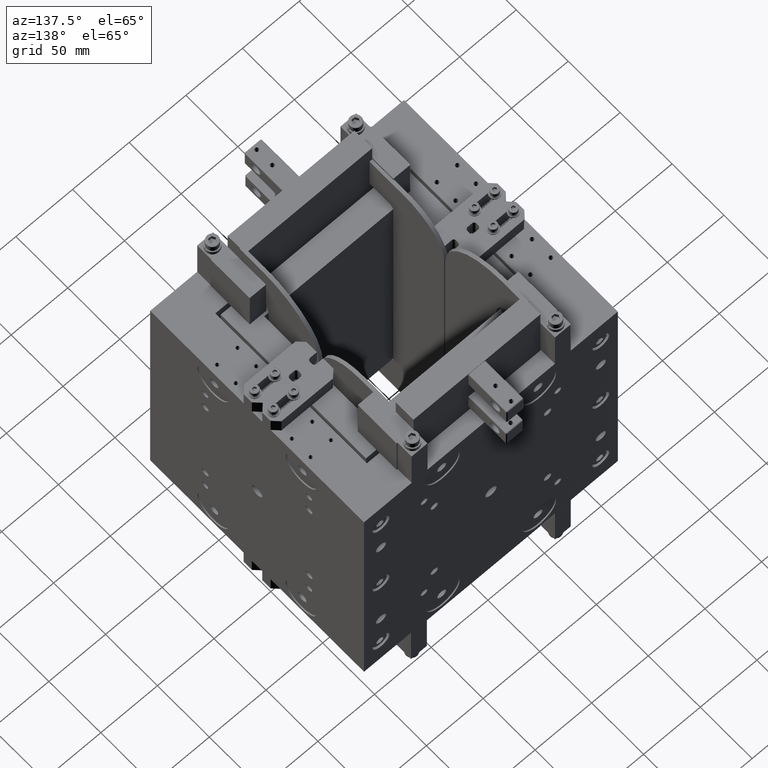
[diagram: clean part render]
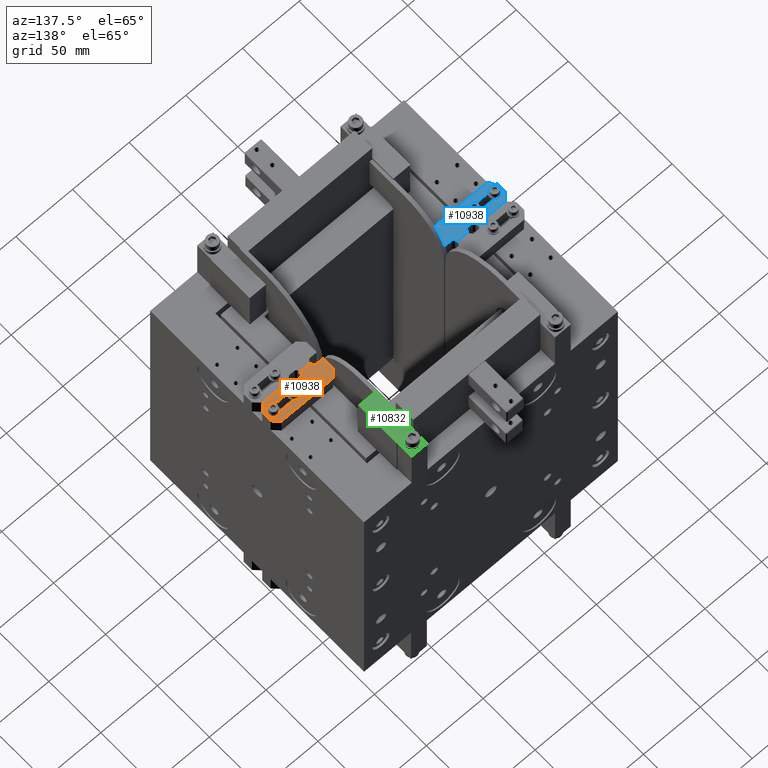
[diagram: same view with three faces highlighted in distinct colors, each labeled with its STEP entity id]
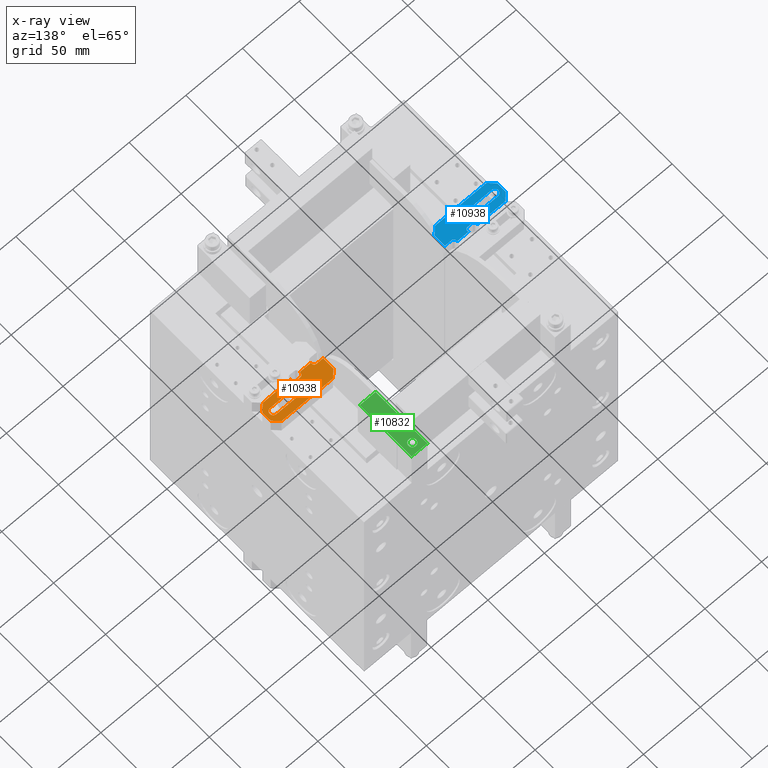
[diagram: x-ray of the same camera — body ghosted, the three highlighted faces saturated]
A machine part, auxiliary view with three faces highlighted in distinct colors.
The next image is the same camera in x-ray (body ghosted, the three faces saturated) — at least one of them is partly hidden behind the body in this view.
Their STEP definitions:

[orange] entity #10938 — the highlighted planar face has unit normal (0, 0, 1).
#1246=FACE_BOUND('',#3308,.T.);
#1669=CIRCLE('',#12020,3.);
#1671=CIRCLE('',#12024,3.);
#1673=CIRCLE('',#12029,2.00000000000001);
#1674=CIRCLE('',#12033,2.);
#1675=CIRCLE('',#12034,2.);
#2408=FACE_OUTER_BOUND('',#3307,.T.);
#3307=EDGE_LOOP('',(#9404,#9405,#9406,#9407,#9408,#9409,#9410,#9411,#9412,
#9413,#9414,#9415,#9416,#9417,#9418,#9419));
#3308=EDGE_LOOP('',(#9420,#9421,#9422,#9423));
#4061=LINE('',#21032,#4827);
#4064=LINE('',#21041,#4830);
#4067=LINE('',#21049,#4833);
#4072=LINE('',#21062,#4838);
#4073=LINE('',#21065,#4839);
#4076=LINE('',#21071,#4842);
#4077=LINE('',#21073,#4843);
#4078=LINE('',#21077,#4844);
#4079=LINE('',#21081,#4845);
#4080=LINE('',#21083,#4846);
#4081=LINE('',#21085,#4847);
#4082=LINE('',#21087,#4848);
#4083=LINE('',#21089,#4849);
#4084=LINE('',#21091,#4850);
#4085=LINE('',#21092,#4851);
#4827=VECTOR('',#14982,18.);
#4830=VECTOR('',#14993,18.);
#4833=VECTOR('',#14998,6.);
#4838=VECTOR('',#15011,1.);
#4839=VECTOR('',#15014,9.99999999999998);
#4842=VECTOR('',#15019,10.);
#4843=VECTOR('',#15020,1.);
#4844=VECTOR('',#15023,4.);
#4845=VECTOR('',#15026,1.);
#4846=VECTOR('',#15027,24.5);
#4847=VECTOR('',#15028,7.07106781186548);
#4848=VECTOR('',#15029,7.99999999999999);
#4849=VECTOR('',#15030,7.07106781186548);
#4850=VECTOR('',#15031,45.5);
#4851=VECTOR('',#15032,7.07106781186548);
#5739=VERTEX_POINT('',#21022);
#5740=VERTEX_POINT('',#21024);
#5742=VERTEX_POINT('',#21030);
#5744=VERTEX_POINT('',#21036);
#5747=VERTEX_POINT('',#21046);
#5748=VERTEX_POINT('',#21048);
#5750=VERTEX_POINT('',#21054);
#5752=VERTEX_POINT('',#21060);
#5753=VERTEX_POINT('',#21064);
#5755=VERTEX_POINT('',#21070);
#5756=VERTEX_POINT('',#21072);
#5757=VERTEX_POINT('',#21074);
#5758=VERTEX_POINT('',#21076);
#5759=VERTEX_POINT('',#21078);
#5760=VERTEX_POINT('',#21080);
#5761=VERTEX_POINT('',#21082);
#5762=VERTEX_POINT('',#21084);
#5763=VERTEX_POINT('',#21086);
#5764=VERTEX_POINT('',#21088);
#5765=VERTEX_POINT('',#21090);
#6964=EDGE_CURVE('',#5740,#5739,#1669,.T.);
#6968=EDGE_CURVE('',#5739,#5742,#4061,.T.);
#6971=EDGE_CURVE('',#5742,#5744,#1671,.T.);
#6973=EDGE_CURVE('',#5744,#5740,#4064,.T.);
#6976=EDGE_CURVE('',#5748,#5747,#4067,.T.);
#6980=EDGE_CURVE('',#5747,#5750,#1673,.T.);
#6983=EDGE_CURVE('',#5750,#5752,#4072,.T.);
#6984=EDGE_CURVE('',#5753,#5748,#4073,.T.);
#6987=EDGE_CURVE('',#5752,#5755,#4076,.T.);
#6988=EDGE_CURVE('',#5755,#5756,#4077,.T.);
#6989=EDGE_CURVE('',#5756,#5757,#1674,.T.);
#6990=EDGE_CURVE('',#5757,#5758,#4078,.T.);
#6991=EDGE_CURVE('',#5758,#5759,#1675,.T.);
#6992=EDGE_CURVE('',#5759,#5760,#4079,.T.);
#6993=EDGE_CURVE('',#5760,#5761,#4080,.T.);
#6994=EDGE_CURVE('',#5761,#5762,#4081,.T.);
#6995=EDGE_CURVE('',#5762,#5763,#4082,.T.);
#6996=EDGE_CURVE('',#5763,#5764,#4083,.T.);
#6997=EDGE_CURVE('',#5764,#5765,#4084,.T.);
#6998=EDGE_CURVE('',#5765,#5753,#4085,.T.);
#9404=ORIENTED_EDGE('',*,*,#6976,.T.);
#9405=ORIENTED_EDGE('',*,*,#6980,.T.);
#9406=ORIENTED_EDGE('',*,*,#6983,.T.);
#9407=ORIENTED_EDGE('',*,*,#6987,.T.);
#9408=ORIENTED_EDGE('',*,*,#6988,.T.);
#9409=ORIENTED_EDGE('',*,*,#6989,.T.);
#9410=ORIENTED_EDGE('',*,*,#6990,.T.);
#9411=ORIENTED_EDGE('',*,*,#6991,.T.);
#9412=ORIENTED_EDGE('',*,*,#6992,.T.);
#9413=ORIENTED_EDGE('',*,*,#6993,.T.);
#9414=ORIENTED_EDGE('',*,*,#6994,.T.);
#9415=ORIENTED_EDGE('',*,*,#6995,.T.);
#9416=ORIENTED_EDGE('',*,*,#6996,.T.);
#9417=ORIENTED_EDGE('',*,*,#6997,.T.);
#9418=ORIENTED_EDGE('',*,*,#6998,.T.);
#9419=ORIENTED_EDGE('',*,*,#6984,.T.);
#9420=ORIENTED_EDGE('',*,*,#6964,.T.);
#9421=ORIENTED_EDGE('',*,*,#6968,.T.);
#9422=ORIENTED_EDGE('',*,*,#6971,.T.);
#9423=ORIENTED_EDGE('',*,*,#6973,.T.);
#9855=PLANE('',#12032);
#10938=ADVANCED_FACE('',(#2408,#1246),#9855,.T.);
#12020=AXIS2_PLACEMENT_3D('',#21025,#14975,#14976);
#12024=AXIS2_PLACEMENT_3D('',#21038,#14988,#14989);
#12029=AXIS2_PLACEMENT_3D('',#21056,#15005,#15006);
#12032=AXIS2_PLACEMENT_3D('',#21069,#15017,#15018);
#12033=AXIS2_PLACEMENT_3D('',#21075,#15021,#15022);
#12034=AXIS2_PLACEMENT_3D('',#21079,#15024,#15025);
#14975=DIRECTION('center_axis',(0.,0.,-1.));
#14976=DIRECTION('ref_axis',(-1.,0.,0.));
#14982=DIRECTION('',(-1.85037170770859E-16,1.,0.));
#14988=DIRECTION('center_axis',(0.,0.,-1.));
#14989=DIRECTION('ref_axis',(1.,0.,0.));
#14993=DIRECTION('',(0.,-1.,0.));
#14998=DIRECTION('',(0.,-1.,0.));
#15005=DIRECTION('center_axis',(0.,0.,-1.));
#15006=DIRECTION('ref_axis',(6.93889390390722E-17,-1.,0.));
#15011=DIRECTION('',(-1.,0.,0.));
#15014=DIRECTION('',(-1.,-6.83214169000097E-16,0.));
#15017=DIRECTION('center_axis',(0.,0.,1.));
#15018=DIRECTION('ref_axis',(1.,0.,0.));
#15019=DIRECTION('',(0.,-1.,0.));
#15020=DIRECTION('',(1.,0.,0.));
#15021=DIRECTION('center_axis',(0.,0.,-1.));
#15022=DIRECTION('ref_axis',(1.,0.,0.));
#15023=DIRECTION('',(5.55111512312578E-16,-1.,0.));
#15024=DIRECTION('center_axis',(0.,0.,-1.));
#15025=DIRECTION('ref_axis',(6.93889390390722E-17,-1.,0.));
#15026=DIRECTION('',(-1.,0.,0.));
#15027=DIRECTION('',(0.,-1.,0.));
#15028=DIRECTION('',(0.707106781186548,-0.707106781186548,0.));
#15029=DIRECTION('',(1.,0.,0.));
#15030=DIRECTION('',(0.707106781186548,0.707106781186547,0.));
#15031=DIRECTION('',(-2.92806072428613E-16,1.,0.));
#15032=DIRECTION('',(-0.707106781186547,0.707106781186548,0.));
#21022=CARTESIAN_POINT('',(6.00000000000001,6.,14.));
#21024=CARTESIAN_POINT('',(12.,6.,14.));
#21025=CARTESIAN_POINT('Origin',(9.,6.,14.));
#21030=CARTESIAN_POINT('',(6.,24.,14.));
#21032=CARTESIAN_POINT('',(6.,26.1877615003536,14.));
#21036=CARTESIAN_POINT('',(12.,24.,14.));
#21038=CARTESIAN_POINT('Origin',(9.,24.,14.));
#21041=CARTESIAN_POINT('',(12.,17.1877615003536,14.));
#21046=CARTESIAN_POINT('',(3.,49.5,14.));
#21048=CARTESIAN_POINT('',(3.,55.5,14.));
#21049=CARTESIAN_POINT('',(3.,38.9377615003536,14.));
#21054=CARTESIAN_POINT('',(1.,47.5,14.));
#21056=CARTESIAN_POINT('Origin',(1.,49.5,14.));
#21060=CARTESIAN_POINT('',(1.09148269594939E-15,47.5,14.));
#21062=CARTESIAN_POINT('',(4.38590793629362,47.5,14.));
#21064=CARTESIAN_POINT('',(13.,55.5,14.));
#21065=CARTESIAN_POINT('',(13.,55.5,14.));
#21069=CARTESIAN_POINT('Origin',(8.77181587258723,28.3755230007073,14.));
#21070=CARTESIAN_POINT('',(-2.52289135337861E-17,37.5,14.));
#21071=CARTESIAN_POINT('',(0.,55.5,14.));
#21072=CARTESIAN_POINT('',(1.,37.5,14.));
#21073=CARTESIAN_POINT('',(4.88590793629362,37.5,14.));
#21074=CARTESIAN_POINT('',(3.,35.5,14.));
#21075=CARTESIAN_POINT('Origin',(1.,35.5,14.));
#21076=CARTESIAN_POINT('',(3.00000000000001,31.5,14.));
#21077=CARTESIAN_POINT('',(3.00000000000001,29.9377615003536,14.));
#21078=CARTESIAN_POINT('',(1.00000000000001,29.5,14.));
#21079=CARTESIAN_POINT('Origin',(1.,31.5,14.));
#21080=CARTESIAN_POINT('',(2.42406468476092E-15,29.5,14.));
#21081=CARTESIAN_POINT('',(4.38590793629362,29.5,14.));
#21082=CARTESIAN_POINT('',(0.,5.,14.));
#21083=CARTESIAN_POINT('',(0.,55.5,14.));
#21084=CARTESIAN_POINT('',(5.,0.,14.));
#21085=CARTESIAN_POINT('',(0.,5.,14.));
#21086=CARTESIAN_POINT('',(13.,0.,14.));
#21087=CARTESIAN_POINT('',(5.,0.,14.));
#21088=CARTESIAN_POINT('',(18.,5.,14.));
#21089=CARTESIAN_POINT('',(13.,0.,14.));
#21090=CARTESIAN_POINT('',(18.,50.5,14.));
#21091=CARTESIAN_POINT('',(18.,5.,14.));
#21092=CARTESIAN_POINT('',(18.,50.5,14.));

[blue] entity #10938 — the highlighted planar face has unit normal (0, 0, 1).
#1246=FACE_BOUND('',#3308,.T.);
#1669=CIRCLE('',#12020,3.);
#1671=CIRCLE('',#12024,3.);
#1673=CIRCLE('',#12029,2.00000000000001);
#1674=CIRCLE('',#12033,2.);
#1675=CIRCLE('',#12034,2.);
#2408=FACE_OUTER_BOUND('',#3307,.T.);
#3307=EDGE_LOOP('',(#9404,#9405,#9406,#9407,#9408,#9409,#9410,#9411,#9412,
#9413,#9414,#9415,#9416,#9417,#9418,#9419));
#3308=EDGE_LOOP('',(#9420,#9421,#9422,#9423));
#4061=LINE('',#21032,#4827);
#4064=LINE('',#21041,#4830);
#4067=LINE('',#21049,#4833);
#4072=LINE('',#21062,#4838);
#4073=LINE('',#21065,#4839);
#4076=LINE('',#21071,#4842);
#4077=LINE('',#21073,#4843);
#4078=LINE('',#21077,#4844);
#4079=LINE('',#21081,#4845);
#4080=LINE('',#21083,#4846);
#4081=LINE('',#21085,#4847);
#4082=LINE('',#21087,#4848);
#4083=LINE('',#21089,#4849);
#4084=LINE('',#21091,#4850);
#4085=LINE('',#21092,#4851);
#4827=VECTOR('',#14982,18.);
#4830=VECTOR('',#14993,18.);
#4833=VECTOR('',#14998,6.);
#4838=VECTOR('',#15011,1.);
#4839=VECTOR('',#15014,9.99999999999998);
#4842=VECTOR('',#15019,10.);
#4843=VECTOR('',#15020,1.);
#4844=VECTOR('',#15023,4.);
#4845=VECTOR('',#15026,1.);
#4846=VECTOR('',#15027,24.5);
#4847=VECTOR('',#15028,7.07106781186548);
#4848=VECTOR('',#15029,7.99999999999999);
#4849=VECTOR('',#15030,7.07106781186548);
#4850=VECTOR('',#15031,45.5);
#4851=VECTOR('',#15032,7.07106781186548);
#5739=VERTEX_POINT('',#21022);
#5740=VERTEX_POINT('',#21024);
#5742=VERTEX_POINT('',#21030);
#5744=VERTEX_POINT('',#21036);
#5747=VERTEX_POINT('',#21046);
#5748=VERTEX_POINT('',#21048);
#5750=VERTEX_POINT('',#21054);
#5752=VERTEX_POINT('',#21060);
#5753=VERTEX_POINT('',#21064);
#5755=VERTEX_POINT('',#21070);
#5756=VERTEX_POINT('',#21072);
#5757=VERTEX_POINT('',#21074);
#5758=VERTEX_POINT('',#21076);
#5759=VERTEX_POINT('',#21078);
#5760=VERTEX_POINT('',#21080);
#5761=VERTEX_POINT('',#21082);
#5762=VERTEX_POINT('',#21084);
#5763=VERTEX_POINT('',#21086);
#5764=VERTEX_POINT('',#21088);
#5765=VERTEX_POINT('',#21090);
#6964=EDGE_CURVE('',#5740,#5739,#1669,.T.);
#6968=EDGE_CURVE('',#5739,#5742,#4061,.T.);
#6971=EDGE_CURVE('',#5742,#5744,#1671,.T.);
#6973=EDGE_CURVE('',#5744,#5740,#4064,.T.);
#6976=EDGE_CURVE('',#5748,#5747,#4067,.T.);
#6980=EDGE_CURVE('',#5747,#5750,#1673,.T.);
#6983=EDGE_CURVE('',#5750,#5752,#4072,.T.);
#6984=EDGE_CURVE('',#5753,#5748,#4073,.T.);
#6987=EDGE_CURVE('',#5752,#5755,#4076,.T.);
#6988=EDGE_CURVE('',#5755,#5756,#4077,.T.);
#6989=EDGE_CURVE('',#5756,#5757,#1674,.T.);
#6990=EDGE_CURVE('',#5757,#5758,#4078,.T.);
#6991=EDGE_CURVE('',#5758,#5759,#1675,.T.);
#6992=EDGE_CURVE('',#5759,#5760,#4079,.T.);
#6993=EDGE_CURVE('',#5760,#5761,#4080,.T.);
#6994=EDGE_CURVE('',#5761,#5762,#4081,.T.);
#6995=EDGE_CURVE('',#5762,#5763,#4082,.T.);
#6996=EDGE_CURVE('',#5763,#5764,#4083,.T.);
#6997=EDGE_CURVE('',#5764,#5765,#4084,.T.);
#6998=EDGE_CURVE('',#5765,#5753,#4085,.T.);
#9404=ORIENTED_EDGE('',*,*,#6976,.T.);
#9405=ORIENTED_EDGE('',*,*,#6980,.T.);
#9406=ORIENTED_EDGE('',*,*,#6983,.T.);
#9407=ORIENTED_EDGE('',*,*,#6987,.T.);
#9408=ORIENTED_EDGE('',*,*,#6988,.T.);
#9409=ORIENTED_EDGE('',*,*,#6989,.T.);
#9410=ORIENTED_EDGE('',*,*,#6990,.T.);
#9411=ORIENTED_EDGE('',*,*,#6991,.T.);
#9412=ORIENTED_EDGE('',*,*,#6992,.T.);
#9413=ORIENTED_EDGE('',*,*,#6993,.T.);
#9414=ORIENTED_EDGE('',*,*,#6994,.T.);
#9415=ORIENTED_EDGE('',*,*,#6995,.T.);
#9416=ORIENTED_EDGE('',*,*,#6996,.T.);
#9417=ORIENTED_EDGE('',*,*,#6997,.T.);
#9418=ORIENTED_EDGE('',*,*,#6998,.T.);
#9419=ORIENTED_EDGE('',*,*,#6984,.T.);
#9420=ORIENTED_EDGE('',*,*,#6964,.T.);
#9421=ORIENTED_EDGE('',*,*,#6968,.T.);
#9422=ORIENTED_EDGE('',*,*,#6971,.T.);
#9423=ORIENTED_EDGE('',*,*,#6973,.T.);
#9855=PLANE('',#12032);
#10938=ADVANCED_FACE('',(#2408,#1246),#9855,.T.);
#12020=AXIS2_PLACEMENT_3D('',#21025,#14975,#14976);
#12024=AXIS2_PLACEMENT_3D('',#21038,#14988,#14989);
#12029=AXIS2_PLACEMENT_3D('',#21056,#15005,#15006);
#12032=AXIS2_PLACEMENT_3D('',#21069,#15017,#15018);
#12033=AXIS2_PLACEMENT_3D('',#21075,#15021,#15022);
#12034=AXIS2_PLACEMENT_3D('',#21079,#15024,#15025);
#14975=DIRECTION('center_axis',(0.,0.,-1.));
#14976=DIRECTION('ref_axis',(-1.,0.,0.));
#14982=DIRECTION('',(-1.85037170770859E-16,1.,0.));
#14988=DIRECTION('center_axis',(0.,0.,-1.));
#14989=DIRECTION('ref_axis',(1.,0.,0.));
#14993=DIRECTION('',(0.,-1.,0.));
#14998=DIRECTION('',(0.,-1.,0.));
#15005=DIRECTION('center_axis',(0.,0.,-1.));
#15006=DIRECTION('ref_axis',(6.93889390390722E-17,-1.,0.));
#15011=DIRECTION('',(-1.,0.,0.));
#15014=DIRECTION('',(-1.,-6.83214169000097E-16,0.));
#15017=DIRECTION('center_axis',(0.,0.,1.));
#15018=DIRECTION('ref_axis',(1.,0.,0.));
#15019=DIRECTION('',(0.,-1.,0.));
#15020=DIRECTION('',(1.,0.,0.));
#15021=DIRECTION('center_axis',(0.,0.,-1.));
#15022=DIRECTION('ref_axis',(1.,0.,0.));
#15023=DIRECTION('',(5.55111512312578E-16,-1.,0.));
#15024=DIRECTION('center_axis',(0.,0.,-1.));
#15025=DIRECTION('ref_axis',(6.93889390390722E-17,-1.,0.));
#15026=DIRECTION('',(-1.,0.,0.));
#15027=DIRECTION('',(0.,-1.,0.));
#15028=DIRECTION('',(0.707106781186548,-0.707106781186548,0.));
#15029=DIRECTION('',(1.,0.,0.));
#15030=DIRECTION('',(0.707106781186548,0.707106781186547,0.));
#15031=DIRECTION('',(-2.92806072428613E-16,1.,0.));
#15032=DIRECTION('',(-0.707106781186547,0.707106781186548,0.));
#21022=CARTESIAN_POINT('',(6.00000000000001,6.,14.));
#21024=CARTESIAN_POINT('',(12.,6.,14.));
#21025=CARTESIAN_POINT('Origin',(9.,6.,14.));
#21030=CARTESIAN_POINT('',(6.,24.,14.));
#21032=CARTESIAN_POINT('',(6.,26.1877615003536,14.));
#21036=CARTESIAN_POINT('',(12.,24.,14.));
#21038=CARTESIAN_POINT('Origin',(9.,24.,14.));
#21041=CARTESIAN_POINT('',(12.,17.1877615003536,14.));
#21046=CARTESIAN_POINT('',(3.,49.5,14.));
#21048=CARTESIAN_POINT('',(3.,55.5,14.));
#21049=CARTESIAN_POINT('',(3.,38.9377615003536,14.));
#21054=CARTESIAN_POINT('',(1.,47.5,14.));
#21056=CARTESIAN_POINT('Origin',(1.,49.5,14.));
#21060=CARTESIAN_POINT('',(1.09148269594939E-15,47.5,14.));
#21062=CARTESIAN_POINT('',(4.38590793629362,47.5,14.));
#21064=CARTESIAN_POINT('',(13.,55.5,14.));
#21065=CARTESIAN_POINT('',(13.,55.5,14.));
#21069=CARTESIAN_POINT('Origin',(8.77181587258723,28.3755230007073,14.));
#21070=CARTESIAN_POINT('',(-2.52289135337861E-17,37.5,14.));
#21071=CARTESIAN_POINT('',(0.,55.5,14.));
#21072=CARTESIAN_POINT('',(1.,37.5,14.));
#21073=CARTESIAN_POINT('',(4.88590793629362,37.5,14.));
#21074=CARTESIAN_POINT('',(3.,35.5,14.));
#21075=CARTESIAN_POINT('Origin',(1.,35.5,14.));
#21076=CARTESIAN_POINT('',(3.00000000000001,31.5,14.));
#21077=CARTESIAN_POINT('',(3.00000000000001,29.9377615003536,14.));
#21078=CARTESIAN_POINT('',(1.00000000000001,29.5,14.));
#21079=CARTESIAN_POINT('Origin',(1.,31.5,14.));
#21080=CARTESIAN_POINT('',(2.42406468476092E-15,29.5,14.));
#21081=CARTESIAN_POINT('',(4.38590793629362,29.5,14.));
#21082=CARTESIAN_POINT('',(0.,5.,14.));
#21083=CARTESIAN_POINT('',(0.,55.5,14.));
#21084=CARTESIAN_POINT('',(5.,0.,14.));
#21085=CARTESIAN_POINT('',(0.,5.,14.));
#21086=CARTESIAN_POINT('',(13.,0.,14.));
#21087=CARTESIAN_POINT('',(5.,0.,14.));
#21088=CARTESIAN_POINT('',(18.,5.,14.));
#21089=CARTESIAN_POINT('',(13.,0.,14.));
#21090=CARTESIAN_POINT('',(18.,50.5,14.));
#21091=CARTESIAN_POINT('',(18.,5.,14.));
#21092=CARTESIAN_POINT('',(18.,50.5,14.));

[green] entity #10832 — the highlighted planar face has unit normal (0, 0, 1).
#1204=FACE_BOUND('',#3160,.T.);
#1613=CIRCLE('',#11827,3.3);
#2302=FACE_OUTER_BOUND('',#3159,.T.);
#3159=EDGE_LOOP('',(#9058,#9059,#9060,#9061));
#3160=EDGE_LOOP('',(#9062));
#3992=LINE('',#17809,#4758);
#3993=LINE('',#17811,#4759);
#3994=LINE('',#17813,#4760);
#3995=LINE('',#17814,#4761);
#4758=VECTOR('',#14527,50.);
#4759=VECTOR('',#14528,14.);
#4760=VECTOR('',#14529,50.);
#4761=VECTOR('',#14530,14.);
#5618=VERTEX_POINT('',#17804);
#5619=VERTEX_POINT('',#17807);
#5620=VERTEX_POINT('',#17808);
#5621=VERTEX_POINT('',#17810);
#5622=VERTEX_POINT('',#17812);
#6805=EDGE_CURVE('',#5618,#5618,#1613,.T.);
#6806=EDGE_CURVE('',#5619,#5620,#3992,.T.);
#6807=EDGE_CURVE('',#5620,#5621,#3993,.T.);
#6808=EDGE_CURVE('',#5621,#5622,#3994,.T.);
#6809=EDGE_CURVE('',#5622,#5619,#3995,.T.);
#9058=ORIENTED_EDGE('',*,*,#6806,.T.);
#9059=ORIENTED_EDGE('',*,*,#6807,.T.);
#9060=ORIENTED_EDGE('',*,*,#6808,.T.);
#9061=ORIENTED_EDGE('',*,*,#6809,.T.);
#9062=ORIENTED_EDGE('',*,*,#6805,.T.);
#9797=PLANE('',#11828);
#10832=ADVANCED_FACE('',(#2302,#1204),#9797,.T.);
#11827=AXIS2_PLACEMENT_3D('',#17805,#14523,#14524);
#11828=AXIS2_PLACEMENT_3D('',#17806,#14525,#14526);
#14523=DIRECTION('center_axis',(0.,0.,-1.));
#14524=DIRECTION('ref_axis',(1.,-1.93770925231245E-11,0.));
#14525=DIRECTION('center_axis',(0.,0.,1.));
#14526=DIRECTION('ref_axis',(1.,0.,0.));
#14527=DIRECTION('',(1.93770481142035E-11,1.,0.));
#14528=DIRECTION('',(-1.,1.93770925231245E-11,0.));
#14529=DIRECTION('',(-1.93770037052825E-11,-1.,0.));
#14530=DIRECTION('',(1.,-1.93770925231245E-11,0.));
#17804=CARTESIAN_POINT('',(66.3000000004759,95.9999999999361,155.5));
#17805=CARTESIAN_POINT('Origin',(63.000000000476,96.,155.5));
#17806=CARTESIAN_POINT('Origin',(63.0000000001271,77.9999999994382,155.5));
#17807=CARTESIAN_POINT('',(69.9999999996427,52.9999999993026,155.5));
#17808=CARTESIAN_POINT('',(70.0000000006116,102.999999999303,155.5));
#17809=CARTESIAN_POINT('',(69.9999999996427,52.9999999993026,155.5));
#17810=CARTESIAN_POINT('',(56.0000000006116,102.999999999574,155.5));
#17811=CARTESIAN_POINT('',(70.0000000006116,102.999999999303,155.5));
#17812=CARTESIAN_POINT('',(55.9999999996427,52.9999999995739,155.5));
#17813=CARTESIAN_POINT('',(56.0000000006116,102.999999999574,155.5));
#17814=CARTESIAN_POINT('',(55.9999999996427,52.9999999995739,155.5));